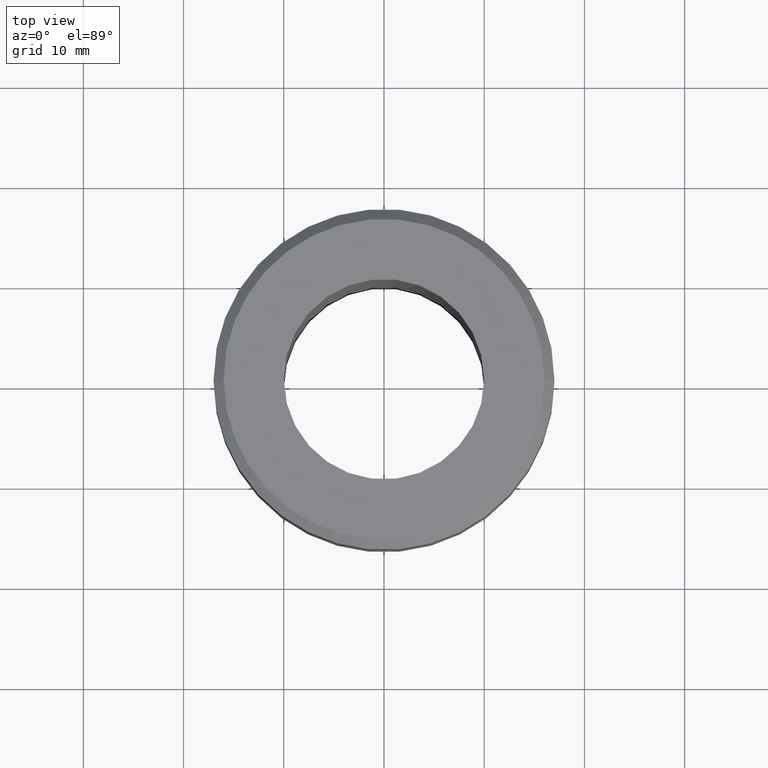
[diagram: clean part render]
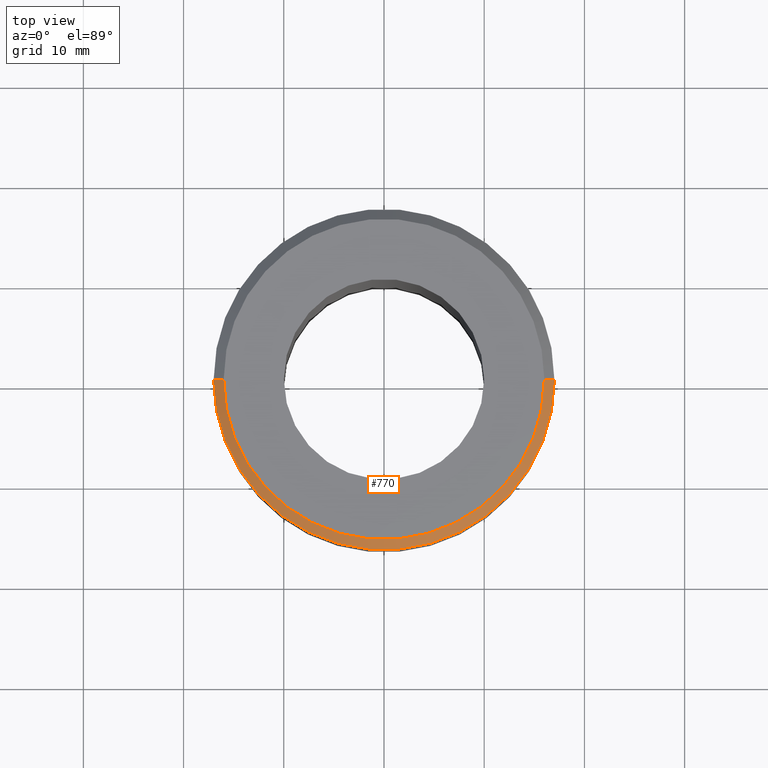
[diagram: same view with one face highlighted and labeled with its STEP entity id]
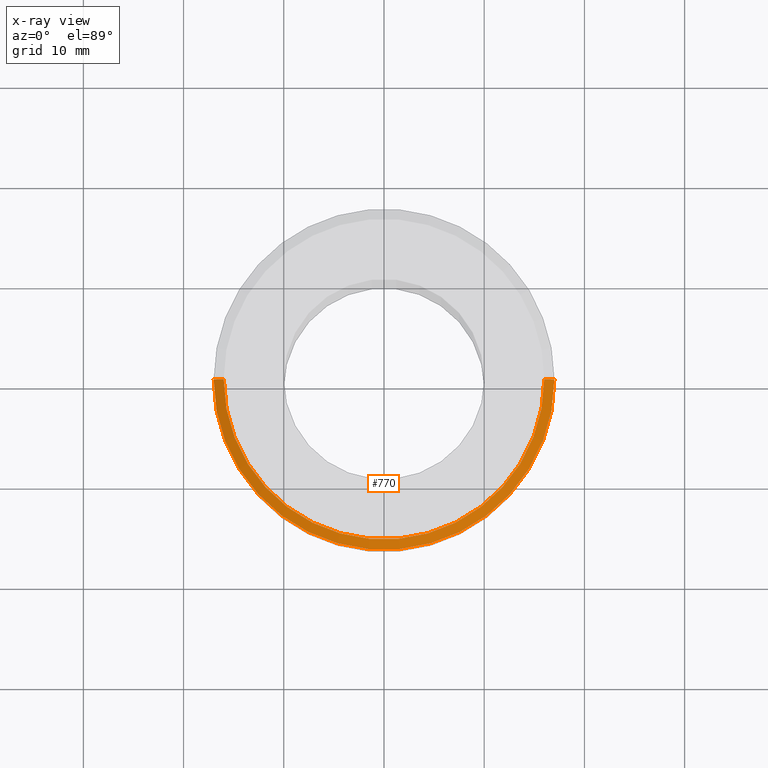
[diagram: x-ray of the same camera — body ghosted, the highlighted face saturated]
A machine part, top view. The second image highlights one B-rep face of the part: STEP entity #770.
The next image is the same camera in x-ray: the body ghosted, the highlighted face saturated — about 0% of this face is hidden behind the body in this view.
In plain terms, the highlighted conical surface has half-angle 45 deg.
Its self-contained STEP definition (entity closure, byte-faithful):
#66 = ORIENTED_EDGE ( 'NONE', *, *, #655, .T. ) ;
#73 = DIRECTION ( 'NONE',  ( -0.000000000000000000, -0.000000000000000000, 1.000000000000000000 ) ) ;
#75 = DIRECTION ( 'NONE',  ( 1.000000000000000000, 0.000000000000000000, 0.000000000000000000 ) ) ;
#108 = EDGE_CURVE ( 'NONE', #311, #136, #626, .T. ) ;
#109 = CARTESIAN_POINT ( 'NONE',  ( -15.99999999999999289, 0.000000000000000000, 0.000000000000000000 ) ) ;
#111 = CARTESIAN_POINT ( 'NONE',  ( -17.00000000000000000, 2.081899558550500280E-15, -1.000000000000011324 ) ) ;
#135 = DIRECTION ( 'NONE',  ( 1.000000000000000000, 0.000000000000000000, 0.000000000000000000 ) ) ;
#136 = VERTEX_POINT ( 'NONE', #764 ) ;
#140 = CARTESIAN_POINT ( 'NONE',  ( 0.000000000000000000, 0.000000000000000000, 0.000000000000000000 ) ) ;
#214 = CARTESIAN_POINT ( 'NONE',  ( 0.000000000000000000, 0.000000000000000000, 0.000000000000000000 ) ) ;
#230 = AXIS2_PLACEMENT_3D ( 'NONE', #140, #73, #135 ) ;
#252 = DIRECTION ( 'NONE',  ( 0.7071067811865463515, 8.659560562354919300E-17, -0.7071067811865487940 ) ) ;
#258 = VERTEX_POINT ( 'NONE', #111 ) ;
#274 = ORIENTED_EDGE ( 'NONE', *, *, #396, .F. ) ;
#308 = CARTESIAN_POINT ( 'NONE',  ( 15.99999999999999289, 1.959434878635764343E-15, 0.000000000000000000 ) ) ;
#311 = VERTEX_POINT ( 'NONE', #441 ) ;
#377 = CARTESIAN_POINT ( 'NONE',  ( 0.000000000000000000, 0.000000000000000000, -1.000000000000011324 ) ) ;
#384 = AXIS2_PLACEMENT_3D ( 'NONE', #377, #686, #75 ) ;
#394 = FACE_OUTER_BOUND ( 'NONE', #437, .T. ) ;
#396 = EDGE_CURVE ( 'NONE', #760, #311, #592, .T. ) ;
#437 = EDGE_LOOP ( 'NONE', ( #683, #274, #66, #522 ) ) ;
#441 = CARTESIAN_POINT ( 'NONE',  ( 15.99999999999999289, 2.020667218593132311E-15, 0.000000000000000000 ) ) ;
#458 = AXIS2_PLACEMENT_3D ( 'NONE', #214, #697, #517 ) ;
#470 = VECTOR ( 'NONE', #621, 1000.000000000000000 ) ;
#517 = DIRECTION ( 'NONE',  ( -1.000000000000000000, 0.000000000000000000, 0.000000000000000000 ) ) ;
#522 = ORIENTED_EDGE ( 'NONE', *, *, #571, .F. ) ;
#555 = CONICAL_SURFACE ( 'NONE', #458, 15.99999999999999289, 0.7853981633974466137 ) ;
#571 = EDGE_CURVE ( 'NONE', #136, #258, #653, .T. ) ;
#592 = CIRCLE ( 'NONE', #230, 15.99999999999999289 ) ;
#617 = LINE ( 'NONE', #109, #470 ) ;
#621 = DIRECTION ( 'NONE',  ( -0.7071067811865463515, 0.000000000000000000, -0.7071067811865487940 ) ) ;
#623 = CARTESIAN_POINT ( 'NONE',  ( -15.99999999999999289, 0.000000000000000000, 0.000000000000000000 ) ) ;
#626 = LINE ( 'NONE', #308, #694 ) ;
#653 = CIRCLE ( 'NONE', #384, 17.00000000000000000 ) ;
#655 = EDGE_CURVE ( 'NONE', #760, #258, #617, .T. ) ;
#683 = ORIENTED_EDGE ( 'NONE', *, *, #108, .F. ) ;
#686 = DIRECTION ( 'NONE',  ( 0.000000000000000000, 0.000000000000000000, -1.000000000000000000 ) ) ;
#694 = VECTOR ( 'NONE', #252, 1000.000000000000000 ) ;
#697 = DIRECTION ( 'NONE',  ( 0.000000000000000000, 0.000000000000000000, -1.000000000000000000 ) ) ;
#760 = VERTEX_POINT ( 'NONE', #623 ) ;
#764 = CARTESIAN_POINT ( 'NONE',  ( 17.00000000000000000, 0.000000000000000000, -1.000000000000011324 ) ) ;
#770 = ADVANCED_FACE ( 'NONE', ( #394 ), #555, .T. ) ;